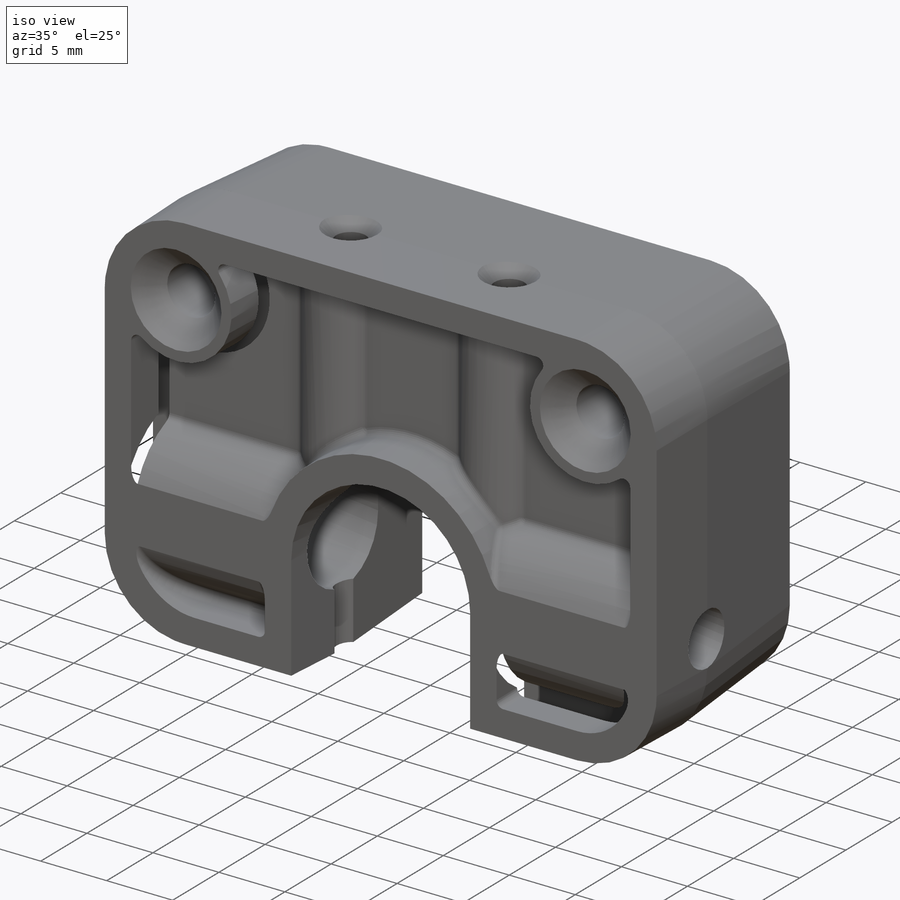
[diagram: iso view]
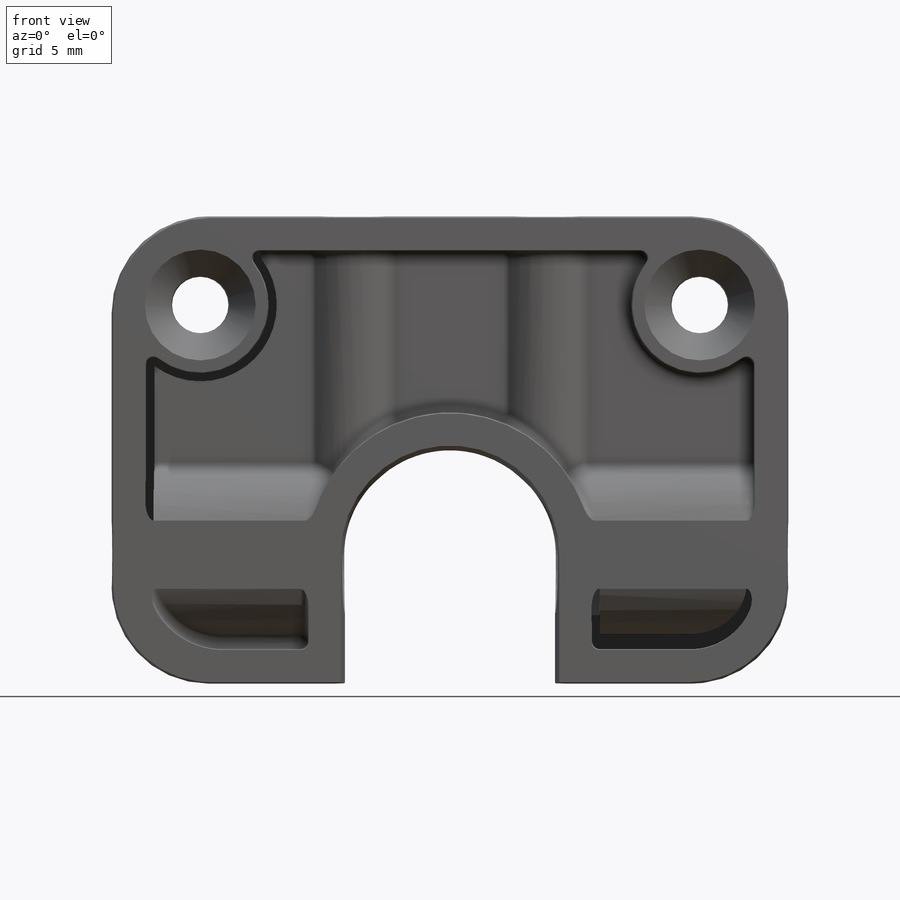
[diagram: front view]
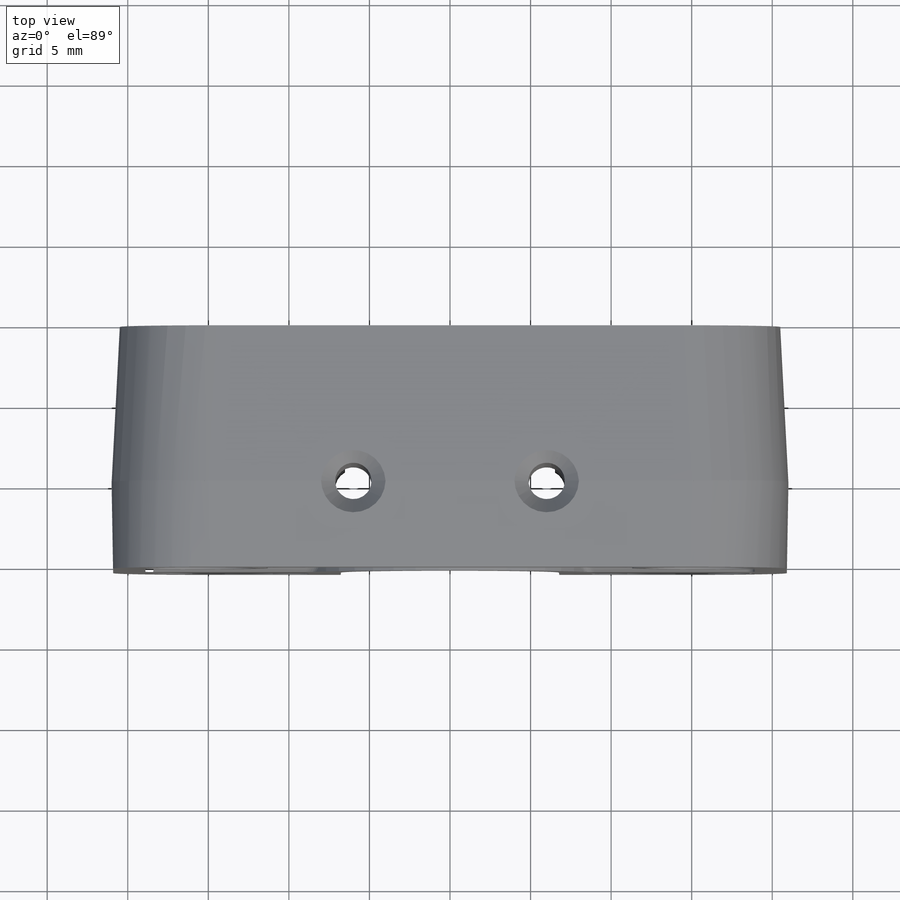
[diagram: top view]
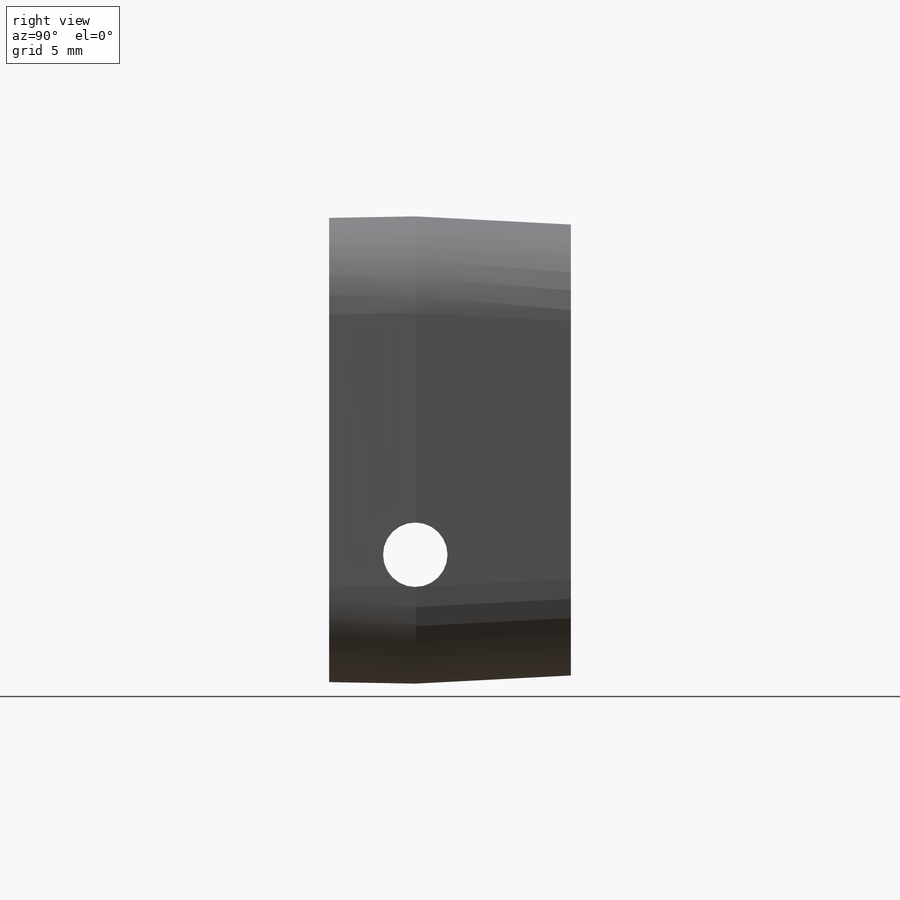
[diagram: right view]
SOLIDWORKS PART (.sldprt)
format: sldprt  version: not decoded by parser v0  size: 2,069,504 bytes
history: native  units: mm
features: sketch x16, cut_extrude x10, fillet x7, extrude x5, material x1, chamfer x1, cut_revolve x1, pattern_linear x1 (+11 scaffold rows collapsed)
feature tree (53):
  scaffold x11  (default folders/planes/origin — collapsed)
  material  "ABS"
  sketch  "Sketch5"  dims[D1=29.0mm D2=42.0mm D3=42.0mm]
  extrude  "Boss-Extrude2"  Depth=5.35mm
  sketch  "Sketch13"  dims[c1.D1=22.0mm c1.D3=~12.948975mm c2.D1=22.2mm c2.D2=20.0mm]
  cut_extrude  "Cut-Extrude9"  Depth=1mm
  sketch  "Sketch6"  dims[D1=13.0mm]
  cut_extrude  "Cut-Extrude3"  [1 undecoded]
  sketch  "Sketch8"  dims[c1.D1=~1.434464mm c1.D3=2.25mm c2.D1=6.0mm c2.D2=5.345mm c3.D1=6.0mm]
  cut_extrude  "Cut-Extrude4"  [1 undecoded]
  sketch  "Sketch9"  dims[c1.D1=3.5mm c1.D2=3.5mm c1.D7=1.5mm c1.D3=15.5mm c1.D4=15.5mm c1.D5=15.5mm c1.D6=15.5mm c2.D5=15.5mm c2.D6=15.5mm]
  cut_extrude  "Cut-Extrude5"  [1 undecoded]
  chamfer  "Chamfer3"  Distance=1.6mm Angle=45deg
  sketch  "Sketch12"  dims[D1=7.5mm]
  cut_extrude  "Cut-Extrude8"  [1 undecoded]
  fillet  "Fillet5"  Radius=6mm
  sketch  "Sketch17"  dims[D1=7.5mm]
  cut_extrude  "Cut-Extrude13"  Depth=32mm
  sketch  "Sketch19"  dims[D1=0.0mm]
  cut_extrude  "Cut-Extrude14"  [1 undecoded]
  sketch  "Sketch34"  dims[c1.D1=~1.343148mm c2.D1=45.0deg c2.D2=2.0mm]
  cut_revolve  "Cut-Revolve1"  Angle=360deg
  pattern_linear  "LPattern1"  Count1=2 Count2=1 Spacing1=12mm Spacing2=50mm
  sketch  "Sketch24"  dims[c1.D2=2.0mm c1.D3=2.0mm c1.D1=0.0mm c2.D2=2.0mm]
  sketch  "Sketch26"  dims[c1.D1=~5.872723mm c1.D8=~13.302408mm c1.D11=~3.836883mm c2.D1=~0.98208mm c2.D2=2.0mm c2.D3=2.0mm c2.D4=2.0mm c2.D5=2.0mm c2.D6=2.0mm c2.D7=2.0mm c2.D8=2.0mm c2.D9=2.0mm c2.D10=~14.64513mm c2.D11=2.0mm c3.D1=0.0mm c3.D2=2.0mm c3.D3=2.0mm c3.D4=2.0mm c4.D1=2.0mm]
  cut_extrude  "Cut-Extrude25"  [1 undecoded]
  cut_extrude  "Cut-Extrude26"  Depth=2mm
  sketch  "Sketch29"  dims[c1.D3=3.75mm c1.D5=~8.780382mm c1.D14=5.5mm c1.D4=~27.154713mm c1.D1=2.0mm c1.D2=2.0mm c2.D3=2.0mm c2.D4=2.0mm c2.D5=2.0mm c2.D6=~15.839897mm c2.D7=2.0mm c3.D6=2.0mm c3.D8=2.0mm c3.D9=~5.29872mm c3.D10=~5.906615mm c3.D11=~5.906615mm c3.D12=~6.127148mm c3.D13=~15.408161mm c3.D14=0.75mm c3.D1=0.0mm c3.D2=2.0mm c3.D3=2.0mm c3.D4=2.0mm]
  fillet  "Fillet7"  Radius=0.5mm
  sketch  "Sketch30"  dims[D1=0.0mm]
  extrude  "Boss-Extrude3"  Depth=1.5mm
  sketch  "Sketch31"  dims[D1=0.0mm]
  extrude  "Boss-Extrude4"  Depth=1.5mm
  fillet  "Fillet8"  Radius=0.5mm
  fillet  "Fillet9"  Radius=0.5mm
  cut_extrude  "Cut-Extrude43"  [1 undecoded]
  sketch  "Sketch32"  dims[D1=0.0mm]
  extrude  "Boss-Extrude5"  Depth=1.5mm
  sketch  "Sketch33"  dims[D1=0.0mm]
  extrude  "Boss-Extrude6"  Depth=1.5mm
  fillet  "Fillet11"  Radius=0.5mm
  fillet  "Fillet10"  Radius=0.5mm
  fillet  "Fillet12"  Radius=0.5mm
decode coverage: 34 of 41 modeling features carry decoded parameters
note: ~ marks probable driven/reference dimensions
note: 7 parameter values undecoded
summary: no parameter record found for 7 features
note: suppression state not decoded; provenance and decode notes live in map.json
